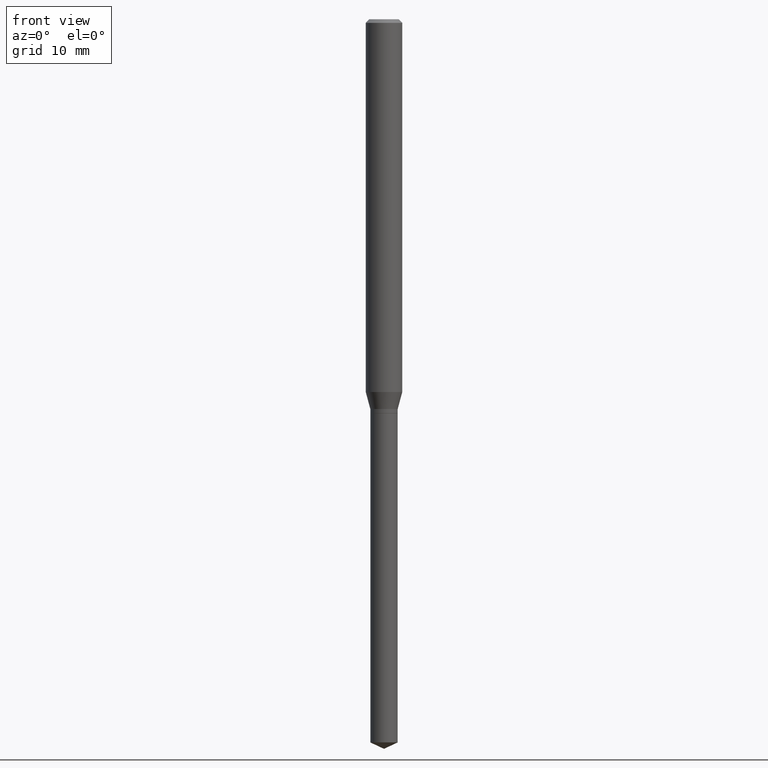
[diagram: clean part render]
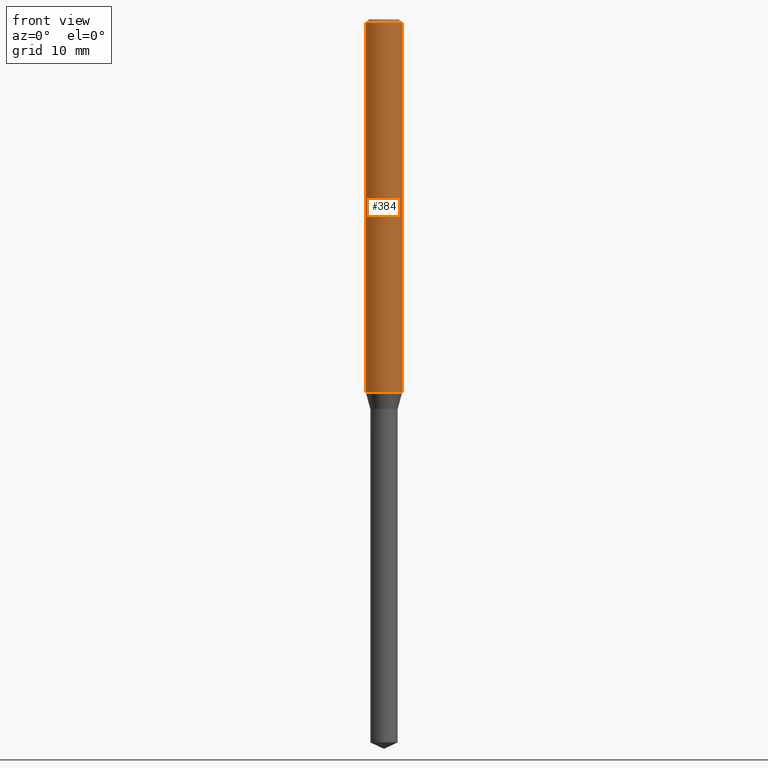
[diagram: same view with one face highlighted and labeled with its STEP entity id]
A machine part, front view. The second image highlights one B-rep face of the part: STEP entity #384.
In plain terms, the highlighted cylindrical surface (edge-blend (fillet) strip) has radius 1.4999 mm, axis along (-0, 0, 1).
Its self-contained STEP definition (entity closure, byte-faithful):
#15 = ORIENTED_EDGE ( 'NONE', *, *, #452, .T. ) ;
#35 = CARTESIAN_POINT ( 'NONE',  ( 2.888098660104663766E-31, -4.123439461173779647E-17, -0.01181000000000007044 ) ) ;
#52 = DIRECTION ( 'NONE',  ( -2.445468806185136597E-29, 3.491481338843145583E-15, 1.000000000000000000 ) ) ;
#75 = EDGE_CURVE ( 'NONE', #207, #286, #226, .T. ) ;
#95 = CARTESIAN_POINT ( 'NONE',  ( 2.951808626249396333E-29, -4.214400407937874930E-15, -1.207052250588358744 ) ) ;
#120 = CARTESIAN_POINT ( 'NONE',  ( -0.05905000000000007465, 4.195754854663396902E-16, -2.904631170795525395E-30 ) ) ;
#189 = DIRECTION ( 'NONE',  ( -2.445468806185136597E-29, 3.491481338843145583E-15, 1.000000000000000000 ) ) ;
#201 = DIRECTION ( 'NONE',  ( -2.445468806185136877E-29, 3.491481338843145188E-15, 1.000000000000000000 ) ) ;
#206 = DIRECTION ( 'NONE',  ( 1.000000000000000000, -6.982962677686266711E-15, 4.876176775795936353E-29 ) ) ;
#207 = VERTEX_POINT ( 'NONE', #235 ) ;
#226 = CIRCLE ( 'NONE', #345, 0.05904999999999999832 ) ;
#228 = CARTESIAN_POINT ( 'NONE',  ( 0.05904999999999999832, -4.535783407291118600E-16, -0.01181000000000007044 ) ) ;
#232 = ORIENTED_EDGE ( 'NONE', *, *, #303, .T. ) ;
#234 = CARTESIAN_POINT ( 'NONE',  ( 0.05905000000000007465, -4.123439461173745750E-16, 2.879382386107504074E-30 ) ) ;
#235 = CARTESIAN_POINT ( 'NONE',  ( -0.05904999999999999832, -1.708241915808465850E-15, -0.01181000000000007044 ) ) ;
#239 = CYLINDRICAL_SURFACE ( 'NONE', #285, 0.05905000000000007465 ) ;
#262 = CIRCLE ( 'NONE', #459, 0.05905000000000015098 ) ;
#265 = EDGE_CURVE ( 'NONE', #310, #207, #311, .T. ) ;
#285 = AXIS2_PLACEMENT_3D ( 'NONE', #394, #52, #206 ) ;
#286 = VERTEX_POINT ( 'NONE', #228 ) ;
#288 = DIRECTION ( 'NONE',  ( 1.000000000000000000, -6.982962677686266711E-15, 0.000000000000000000 ) ) ;
#303 = EDGE_CURVE ( 'NONE', #470, #286, #424, .T. ) ;
#310 = VERTEX_POINT ( 'NONE', #354 ) ;
#311 = LINE ( 'NONE', #120, #447 ) ;
#325 = CARTESIAN_POINT ( 'NONE',  ( 0.05905000000000015098, -4.626744354055249850E-15, -1.207052250588358744 ) ) ;
#335 = DIRECTION ( 'NONE',  ( 1.000000000000000000, -6.982962677686271444E-15, 0.000000000000000000 ) ) ;
#341 = DIRECTION ( 'NONE',  ( -2.445468806185136597E-29, 3.491481338843145583E-15, 1.000000000000000000 ) ) ;
#345 = AXIS2_PLACEMENT_3D ( 'NONE', #35, #341, #288 ) ;
#354 = CARTESIAN_POINT ( 'NONE',  ( -0.05905000000000015098, -3.794824922471535437E-15, -1.207052250588358744 ) ) ;
#364 = ORIENTED_EDGE ( 'NONE', *, *, #75, .F. ) ;
#384 = ADVANCED_FACE ( 'NONE', ( #432 ), #239, .T. ) ;
#394 = CARTESIAN_POINT ( 'NONE',  ( 0.000000000000000000, 0.000000000000000000, 0.000000000000000000 ) ) ;
#404 = ORIENTED_EDGE ( 'NONE', *, *, #265, .F. ) ;
#424 = LINE ( 'NONE', #234, #458 ) ;
#432 = FACE_OUTER_BOUND ( 'NONE', #469, .T. ) ;
#447 = VECTOR ( 'NONE', #201, 39.37007874015748143 ) ;
#452 = EDGE_CURVE ( 'NONE', #310, #470, #262, .T. ) ;
#458 = VECTOR ( 'NONE', #463, 39.37007874015748143 ) ;
#459 = AXIS2_PLACEMENT_3D ( 'NONE', #95, #189, #335 ) ;
#463 = DIRECTION ( 'NONE',  ( -2.445468806185136877E-29, 3.491481338843145188E-15, 1.000000000000000000 ) ) ;
#469 = EDGE_LOOP ( 'NONE', ( #404, #15, #232, #364 ) ) ;
#470 = VERTEX_POINT ( 'NONE', #325 ) ;